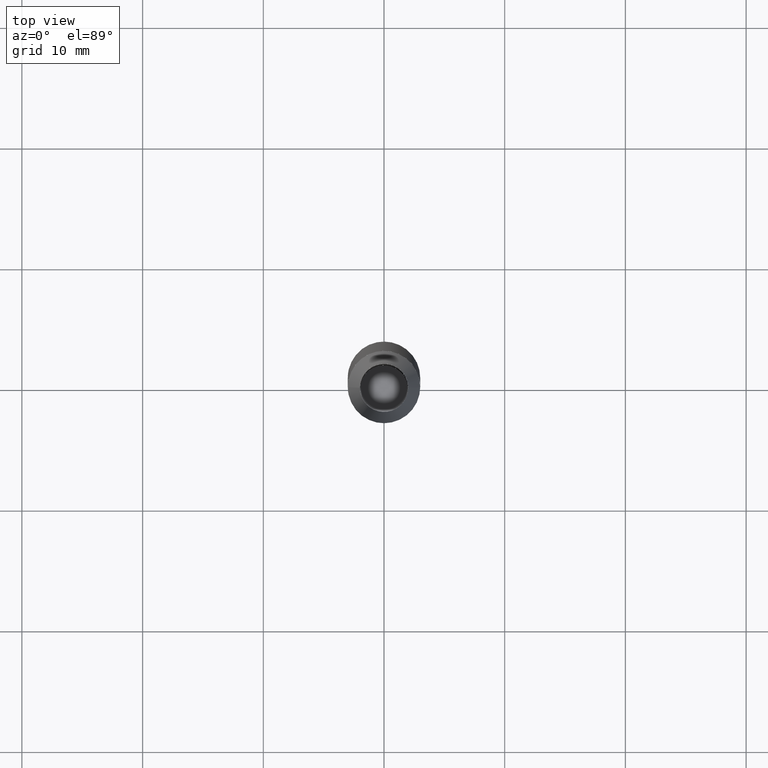
[diagram: clean part render]
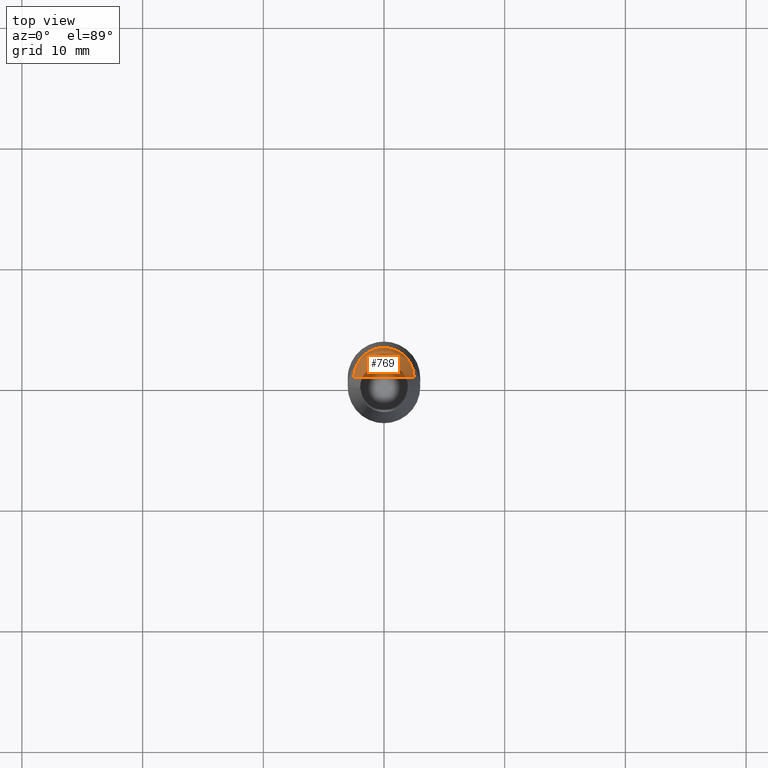
[diagram: same view with one face highlighted and labeled with its STEP entity id]
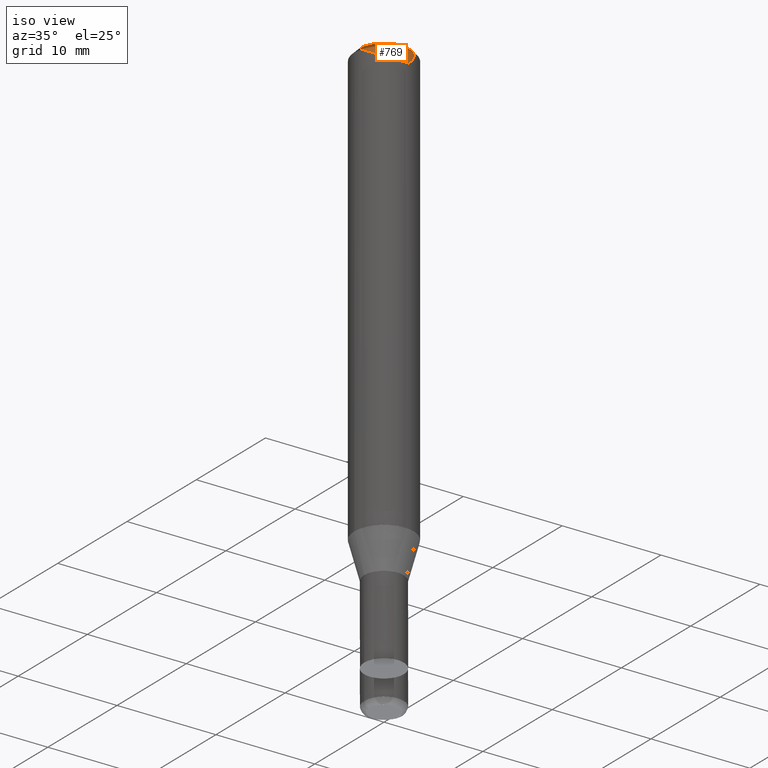
[diagram: same view with one face highlighted and labeled with its STEP entity id]
A machine part, top view. The second image highlights one B-rep face of the part: STEP entity #769.
A second angle (iso view) of the same face is appended — the face is thin or edge-on in the first view.
In plain terms, the highlighted face is a freeform B-spline surface patch.
Its self-contained STEP definition (entity closure, byte-faithful):
#485=CARTESIAN_POINT('',(2.5,0.0,44.267949192431));
#486=CARTESIAN_POINT('',(2.5,2.5,44.267949192431));
#487=CARTESIAN_POINT('',(0.0,2.5,44.267949192431));
#488=CARTESIAN_POINT('',(-2.5,2.5,44.267949192431));
#489=CARTESIAN_POINT('',(-2.5,0.0,44.267949192431));
#490=CARTESIAN_POINT('',(0.0,0.0,44.267949192431));
#754=(
BOUNDED_SURFACE()
B_SPLINE_SURFACE(1,2,(
(#485,#486,#487,#488,#489),
(#490,#490,#490,#490,#490)
), .UNSPECIFIED.,.F.,.F.,.F.)
B_SPLINE_SURFACE_WITH_KNOTS((2,2),(3,2,3),(
0.0,1.0),(
0.0,0.5,1.0), .UNSPECIFIED.)
GEOMETRIC_REPRESENTATION_ITEM()
RATIONAL_B_SPLINE_SURFACE(((1.0,0.707106781187,1.0,0.707106781187,1.0),
(1.0,0.707106781187,1.0,0.707106781187,1.0)
))
REPRESENTATION_ITEM('')
SURFACE()
);
#755=(
BOUNDED_CURVE()
B_SPLINE_CURVE(1,(#490,#485),.UNSPECIFIED.,.F.,.F.)
B_SPLINE_CURVE_WITH_KNOTS((2,2),
(0.0,1.0),.UNSPECIFIED.)
CURVE()
GEOMETRIC_REPRESENTATION_ITEM()
RATIONAL_B_SPLINE_CURVE((1.0,1.0))
REPRESENTATION_ITEM('')
);
#756=(
BOUNDED_CURVE()
B_SPLINE_CURVE(2,(#485,#486,#487,#488,#489),.UNSPECIFIED.,.F.,.F.)
B_SPLINE_CURVE_WITH_KNOTS((3,2,3),
(0.0,0.5,1.0),.UNSPECIFIED.)
CURVE()
GEOMETRIC_REPRESENTATION_ITEM()
RATIONAL_B_SPLINE_CURVE((1.0,0.707106781187,1.0,0.707106781187,1.0))
REPRESENTATION_ITEM('')
);
#757=(
BOUNDED_CURVE()
B_SPLINE_CURVE(1,(#489,#490),.UNSPECIFIED.,.F.,.F.)
B_SPLINE_CURVE_WITH_KNOTS((2,2),
(0.0,1.0),.UNSPECIFIED.)
CURVE()
GEOMETRIC_REPRESENTATION_ITEM()
RATIONAL_B_SPLINE_CURVE((1.0,1.0))
REPRESENTATION_ITEM('')
);
#758=VERTEX_POINT('',#485);
#759=VERTEX_POINT('',#489);
#760=VERTEX_POINT('',#490);
#761=EDGE_CURVE('',#760,#758,#755,.T.);
#762=EDGE_CURVE('',#758,#759,#756,.T.);
#763=EDGE_CURVE('',#759,#760,#757,.T.);
#764=ORIENTED_EDGE('',*,*,#761,.T.);
#765=ORIENTED_EDGE('',*,*,#762,.T.);
#766=ORIENTED_EDGE('',*,*,#763,.T.);
#767=EDGE_LOOP('',(#764,#765,#766));
#768=FACE_OUTER_BOUND('',#767,.T.);
#769=ADVANCED_FACE('',(#768),#754,.T.);